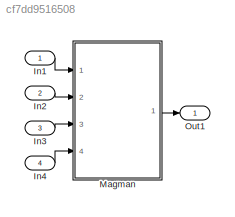
MODEL slx_cf7dd9516508
KIND model
CONFIG AbsTol = auto
CONFIG EnableMultiTasking = off
CONFIG FixedStep = auto
CONFIG MaxStep = auto
CONFIG MinStep = auto
CONFIG RelTol = 1e-3
CONFIG SampleTimeConstraint = Unconstrained
CONFIG Solver = VariableStepAuto
CONFIG SolverName = VariableStepAuto
CONFIG StartTime = 0.0
CONFIG StopTime = 10.0
BLOCK [Inport] In1
  IconDisplay = Port number
BLOCK [Inport] In2
  IconDisplay = Port number
  Port = 2
BLOCK [Inport] In3
  IconDisplay = Port number
  Port = 3
BLOCK [Inport] In4
  IconDisplay = Port number
  Port = 4
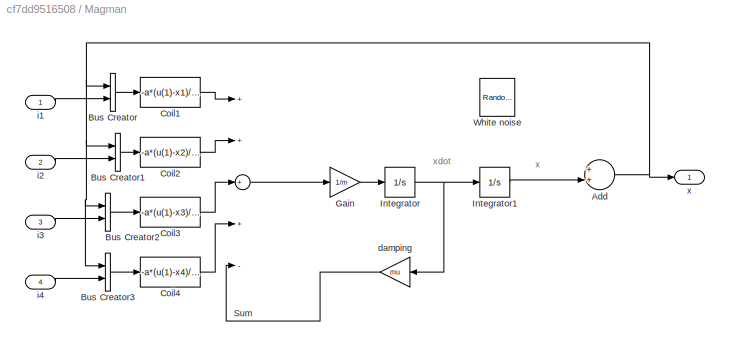
BLOCK [SubSystem] Magman
  Ports = [4, 1]
  RequestExecContextInheritance = off
  Variant = off
BLOCK [Sum] Magman/Add
  InputSameDT = off
  OutDataTypeStr = Inherit: Inherit via internal rule
  Ports = [2, 1]
  SaturateOnIntegerOverflow = off
BLOCK [BusCreator] Magman/Bus Creator
  DisplayOption = bar
  InheritFromInputs = on
  Inputs = 2
  Ports = [2, 1]
BLOCK [BusCreator] Magman/Bus Creator1
  DisplayOption = bar
  InheritFromInputs = on
  Inputs = 2
  Ports = [2, 1]
BLOCK [BusCreator] Magman/Bus Creator2
  DisplayOption = bar
  InheritFromInputs = on
  Inputs = 2
  Ports = [2, 1]
BLOCK [BusCreator] Magman/Bus Creator3
  DisplayOption = bar
  InheritFromInputs = on
  Inputs = 2
  Ports = [2, 1]
BLOCK [Fcn] Magman/Coil1
  Expr = -a*(u(1)-x1)/(((u(1)-x1)^2+b)^3)*(u(2))
BLOCK [Fcn] Magman/Coil2
  Expr = -a*(u(1)-x2)/(((u(1)-x2)^2+b)^3)*(u(2))
BLOCK [Fcn] Magman/Coil3
  Expr = -a*(u(1)-x3)/(((u(1)-x3)^2+b)^3)*(u(2))
BLOCK [Fcn] Magman/Coil4
  Expr = -a*(u(1)-x4)/(((u(1)-x4)^2+b)^3)*(u(2))
BLOCK [Gain] Magman/Gain
  Gain = 1/m
  OutDataTypeStr = Inherit: Inherit via internal rule
  ParamDataTypeStr = Inherit: Inherit via internal rule
  SaturateOnIntegerOverflow = off
BLOCK [Integrator] Magman/Integrator
  ContinuousStateAttributes = 'xdot'
  Ports = [1, 1]
BLOCK [Integrator] Magman/Integrator1
  ContinuousStateAttributes = 'x'
  InitialCondition = x00
  Ports = [1, 1]
BLOCK [Sum] Magman/Sum
  InputSameDT = off
  Inputs = ++++-
  OutDataTypeStr = Inherit: Inherit via internal rule
  Ports = [5, 1]
  SaturateOnIntegerOverflow = off
BLOCK [Reference] Magman/White noise  REF=dspsrcs4/Random
Source
  Commented = on
  Ports = [0, 1]
  SourceBlock = dspsrcs4/Random\nSource
  SourceType = Random Source
  UserDataPersistent = on
BLOCK [Gain] Magman/damping
  Gain = mu
  OutDataTypeStr = Inherit: Inherit via internal rule
  ParamDataTypeStr = Inherit: Inherit via internal rule
  SaturateOnIntegerOverflow = off
BLOCK [Inport] Magman/i1
  IconDisplay = Port number
BLOCK [Inport] Magman/i2
  IconDisplay = Port number
  Port = 2
BLOCK [Inport] Magman/i3
  IconDisplay = Port number
  Port = 3
BLOCK [Inport] Magman/i4
  IconDisplay = Port number
  Port = 4
BLOCK [Outport] Magman/x
  IconDisplay = Port number
BLOCK [Outport] Out1
  IconDisplay = Port number
ANNOTATION Magman: x
ANNOTATION Magman: xdot
LINE In1:1 -> Magman:1
LINE In2:1 -> Magman:2
LINE In3:1 -> Magman:3
LINE In4:1 -> Magman:4
NET Magman/Add:1 -> Magman/Bus Creator1:1, Magman/Bus Creator2:1, Magman/Bus Creator3:1, Magman/Bus Creator:1, Magman/x:1
LINE Magman/Bus Creator1:1 -> Magman/Coil2:1
LINE Magman/Bus Creator2:1 -> Magman/Coil3:1
LINE Magman/Bus Creator3:1 -> Magman/Coil4:1
LINE Magman/Bus Creator:1 -> Magman/Coil1:1
LINE Magman/Coil1:1 -> Magman/Sum:1
LINE Magman/Coil2:1 -> Magman/Sum:2
LINE Magman/Coil3:1 -> Magman/Sum:3
LINE Magman/Coil4:1 -> Magman/Sum:4
LINE Magman/Gain:1 -> Magman/Integrator:1
LINE Magman/Integrator1:1 -> Magman/Add:2
NET Magman/Integrator:1 -> Magman/Integrator1:1, Magman/damping:1
LINE Magman/Sum:1 -> Magman/Gain:1
LINE Magman/damping:1 -> Magman/Sum:5
LINE Magman/i1:1 -> Magman/Bus Creator:2
LINE Magman/i2:1 -> Magman/Bus Creator1:2
LINE Magman/i3:1 -> Magman/Bus Creator2:2
LINE Magman/i4:1 -> Magman/Bus Creator3:2
LINE Magman:1 -> Out1:1
note: NET lines group one-source signal fan-out (src -> all destinations, sorted); 1:1 wires keep LINE
